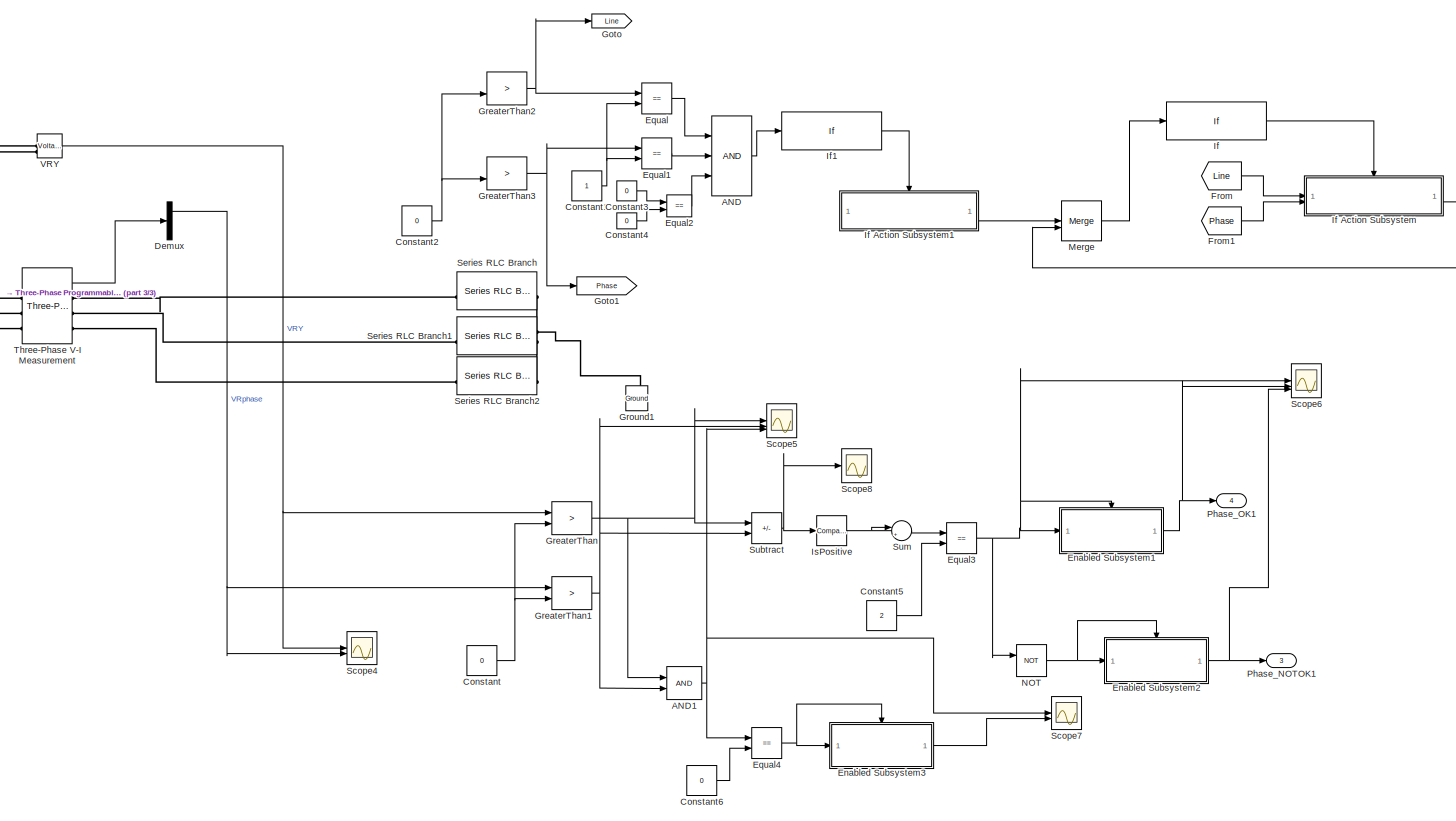
[diagram: root canvas - part 1/3, right side, full height]
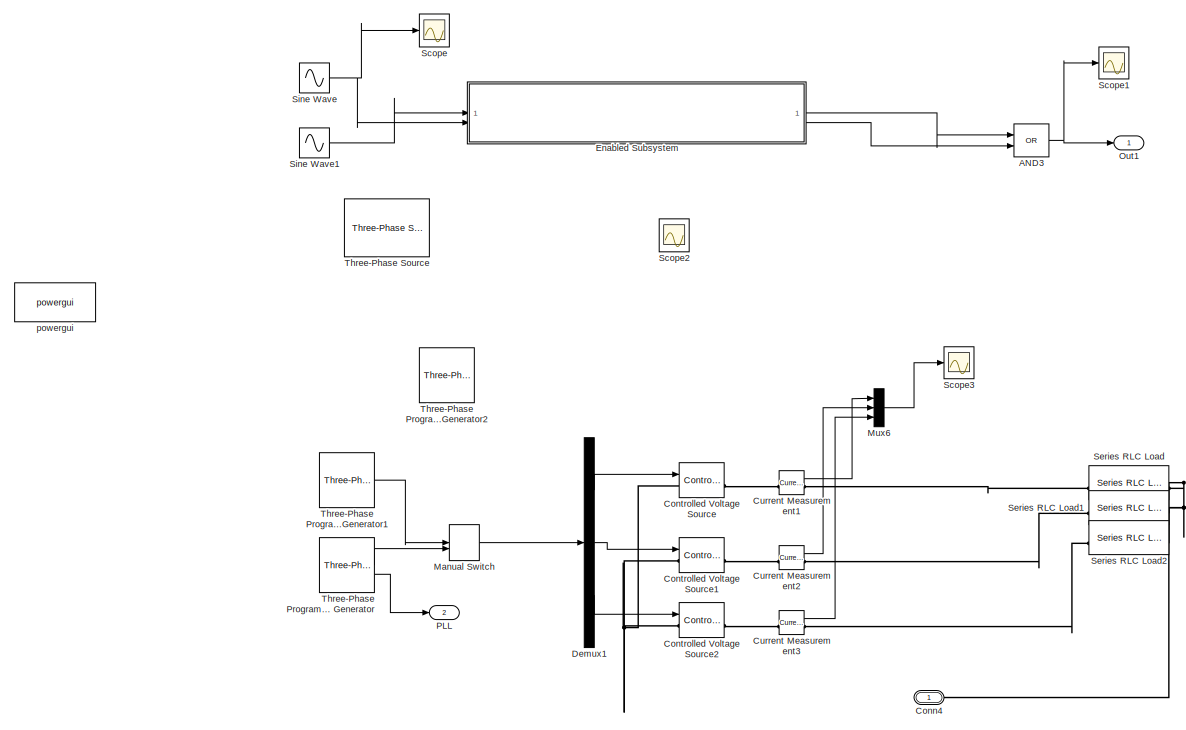
[diagram: root canvas - part 2/3, left side, full height]
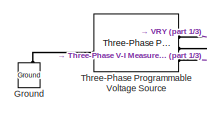
[diagram: root canvas - part 3/3, central region]
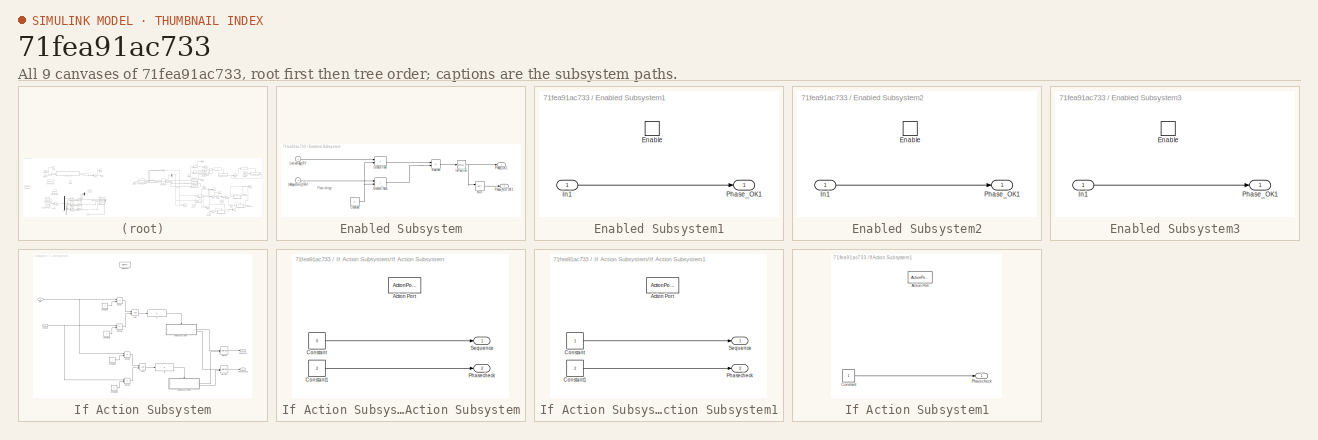
[diagram: thumbnail index - all 9 canvases of the model, root first then tree order]
MODEL slx_71fea91ac733
KIND model
CONFIG AbsTol = auto
CONFIG EnableMultiTasking = off
CONFIG FixedStep = auto
CONFIG MaxStep = auto
CONFIG MinStep = auto
CONFIG RelTol = 1e-3
CONFIG SampleTimeConstraint = Unconstrained
CONFIG SolverName = VariableStepAuto
CONFIG StartTime = 0.0
CONFIG StopTime = 10.0
BLOCK [Logic] AND
  AllPortsSameDT = off
  Inputs = 3
  OutDataTypeStr = boolean
BLOCK [Logic] AND1
  AllPortsSameDT = off
  OutDataTypeStr = boolean
BLOCK [Logic] AND3
  AllPortsSameDT = off
  Operator = OR
  OutDataTypeStr = boolean
BLOCK [PMIOPort] Conn4
  Side = Left
BLOCK [Constant] Constant
  Value = 0
BLOCK [Constant] Constant1
BLOCK [Constant] Constant2
  Value = 0
BLOCK [Constant] Constant3
  Value = 0
BLOCK [Constant] Constant4
  Value = 0
BLOCK [Constant] Constant5
  Value = 2
BLOCK [Constant] Constant6
  Value = 0
BLOCK [Reference] Controlled Voltage Source  REF=spsControlledVoltageSourceLib/Controlled Voltage Source
  LibrarySourceBlock = sps_lib/Sources/Controlled Voltage Source
  SourceBlock = spsControlledVoltageSourceLib/Controlled Voltage Source
  SourceType = Controlled Voltage Source
BLOCK [Reference] Controlled Voltage Source1  REF=spsControlledVoltageSourceLib/Controlled Voltage Source
  LibrarySourceBlock = sps_lib/Sources/Controlled Voltage Source
  SourceBlock = spsControlledVoltageSourceLib/Controlled Voltage Source
  SourceType = Controlled Voltage Source
BLOCK [Reference] Controlled Voltage Source2  REF=spsControlledVoltageSourceLib/Controlled Voltage Source
  LibrarySourceBlock = sps_lib/Sources/Controlled Voltage Source
  SourceBlock = spsControlledVoltageSourceLib/Controlled Voltage Source
  SourceType = Controlled Voltage Source
BLOCK [Reference] Current Measurement1  REF=spsCurrentMeasurementLib/Current Measurement
  LibrarySourceBlock = sps_lib/Sensors and Measurements/Current Measurement
  NameLocation = top
  SourceBlock = spsCurrentMeasurementLib/Current Measurement
  SourceType = Current Measurement
BLOCK [Reference] Current Measurement2  REF=spsCurrentMeasurementLib/Current Measurement
  LibrarySourceBlock = sps_lib/Sensors and Measurements/Current Measurement
  NameLocation = top
  SourceBlock = spsCurrentMeasurementLib/Current Measurement
  SourceType = Current Measurement
BLOCK [Reference] Current Measurement3  REF=spsCurrentMeasurementLib/Current Measurement
  LibrarySourceBlock = sps_lib/Sensors and Measurements/Current Measurement
  NameLocation = top
  SourceBlock = spsCurrentMeasurementLib/Current Measurement
  SourceType = Current Measurement
BLOCK [Demux] Demux
  Outputs = 3
BLOCK [Demux] Demux1
  Outputs = 3
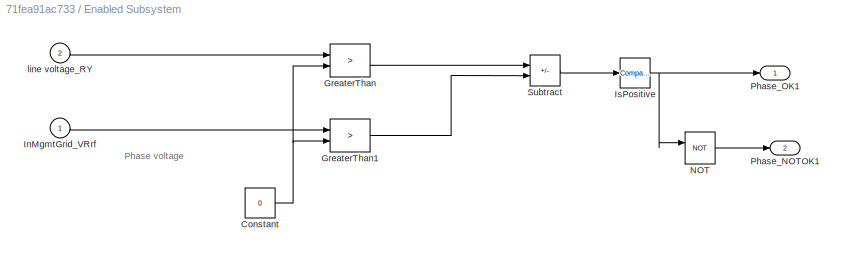
BLOCK [SubSystem] Enabled Subsystem
  TreatAsAtomicUnit = on
BLOCK [Constant] Enabled Subsystem/Constant
  Value = 0
BLOCK [RelationalOperator] Enabled Subsystem/GreaterThan
  InputSameDT = off
  Operator = >
  OutDataTypeStr = boolean
  RndMeth = Simplest
BLOCK [RelationalOperator] Enabled Subsystem/GreaterThan1
  InputSameDT = off
  Operator = >
  OutDataTypeStr = boolean
  RndMeth = Simplest
BLOCK [Inport] Enabled Subsystem/InMgmtGrid_VRrf
BLOCK [Reference] Enabled Subsystem/IsPositive  REF=simulink/Logic and Bit
Operations/Compare
To Zero
  LibrarySourceBlock = simulink/Quick Insert/Logic and Bit\nOperations/IsPositive
  SourceBlock = simulink/Logic and Bit\nOperations/Compare\nTo Zero
  SourceType = Compare To Zero
BLOCK [Logic] Enabled Subsystem/NOT
  AllPortsSameDT = off
  IconShape = distinctive
  Operator = NOT
  OutDataTypeStr = boolean
BLOCK [Outport] Enabled Subsystem/Phase_NOTOK1
  Port = 2
BLOCK [Outport] Enabled Subsystem/Phase_OK1
BLOCK [Sum] Enabled Subsystem/Subtract
  IconShape = rectangular
  Inputs = +-
BLOCK [Inport] Enabled Subsystem/line voltage_RY
  Port = 2
BLOCK [SubSystem] Enabled Subsystem1
  TreatAsAtomicUnit = on
BLOCK [EnablePort] Enabled Subsystem1/Enable
BLOCK [Inport] Enabled Subsystem1/In1
BLOCK [Outport] Enabled Subsystem1/Phase_OK1
BLOCK [SubSystem] Enabled Subsystem2
  TreatAsAtomicUnit = on
BLOCK [EnablePort] Enabled Subsystem2/Enable
BLOCK [Inport] Enabled Subsystem2/In1
BLOCK [Outport] Enabled Subsystem2/Phase_OK1
BLOCK [SubSystem] Enabled Subsystem3
  TreatAsAtomicUnit = on
BLOCK [EnablePort] Enabled Subsystem3/Enable
BLOCK [Inport] Enabled Subsystem3/In1
BLOCK [Outport] Enabled Subsystem3/Phase_OK1
BLOCK [RelationalOperator] Equal
  InputSameDT = off
  Operator = ==
  OutDataTypeStr = boolean
  RndMeth = Simplest
BLOCK [RelationalOperator] Equal1
  InputSameDT = off
  Operator = ==
  OutDataTypeStr = boolean
  RndMeth = Simplest
BLOCK [RelationalOperator] Equal2
  InputSameDT = off
  Operator = ==
  OutDataTypeStr = boolean
  RndMeth = Simplest
BLOCK [RelationalOperator] Equal3
  InputSameDT = off
  Operator = ==
  OutDataTypeStr = boolean
  RndMeth = Simplest
BLOCK [RelationalOperator] Equal4
  InputSameDT = off
  Operator = ==
  OutDataTypeStr = boolean
  RndMeth = Simplest
BLOCK [From] From
  GotoTag = Line
BLOCK [From] From1
  GotoTag = Phase
BLOCK [Goto] Goto
  GotoTag = Line
BLOCK [Goto] Goto1
  GotoTag = Phase
BLOCK [RelationalOperator] GreaterThan
  InputSameDT = off
  Operator = >
  OutDataTypeStr = boolean
  RndMeth = Simplest
BLOCK [RelationalOperator] GreaterThan1
  InputSameDT = off
  Operator = >
  OutDataTypeStr = boolean
  RndMeth = Simplest
BLOCK [RelationalOperator] GreaterThan2
  InputSameDT = off
  Operator = >
  OutDataTypeStr = boolean
  RndMeth = Simplest
BLOCK [RelationalOperator] GreaterThan3
  InputSameDT = off
  Operator = >
  OutDataTypeStr = boolean
  RndMeth = Simplest
BLOCK [Reference] Ground  REF=spsGroundLib/Ground
  LibrarySourceBlock = sps_lib/Utilities/Ground
  NameLocation = right
  SourceBlock = spsGroundLib/Ground
  SourceType = Ground
BLOCK [Reference] Ground1  REF=spsGroundLib/Ground
  LibrarySourceBlock = sps_lib/Utilities/Ground
  NameLocation = right
  SourceBlock = spsGroundLib/Ground
  SourceType = Ground
BLOCK [If] If
  Commented = on
  IfExpression = u1==1
  ShowElse = off
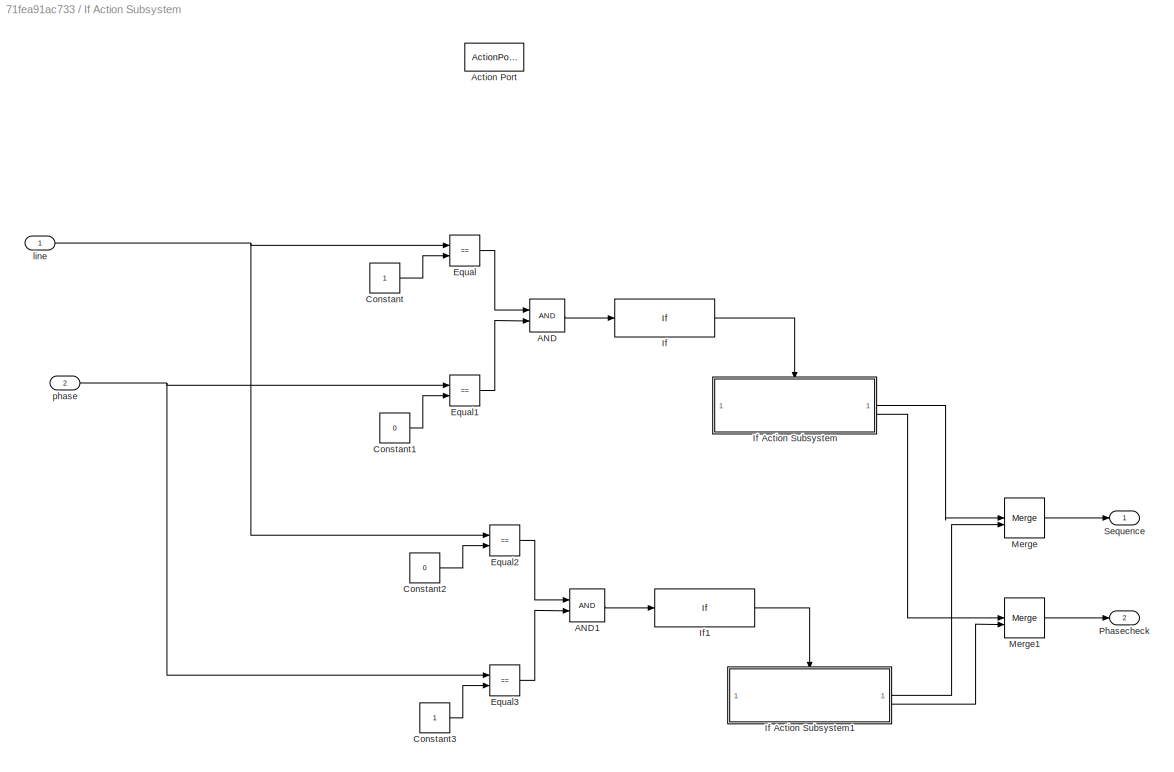
BLOCK [SubSystem] If Action Subsystem
  Commented = on
  TreatAsAtomicUnit = on
BLOCK [Logic] If Action Subsystem/AND
  AllPortsSameDT = off
  OutDataTypeStr = boolean
BLOCK [Logic] If Action Subsystem/AND1
  AllPortsSameDT = off
  OutDataTypeStr = boolean
BLOCK [ActionPort] If Action Subsystem/Action Port
  ActionPortLabel = if(u1==1)
BLOCK [Constant] If Action Subsystem/Constant
BLOCK [Constant] If Action Subsystem/Constant1
  Value = 0
BLOCK [Constant] If Action Subsystem/Constant2
  Value = 0
BLOCK [Constant] If Action Subsystem/Constant3
BLOCK [RelationalOperator] If Action Subsystem/Equal
  InputSameDT = off
  Operator = ==
  OutDataTypeStr = boolean
  RndMeth = Simplest
BLOCK [RelationalOperator] If Action Subsystem/Equal1
  InputSameDT = off
  Operator = ==
  OutDataTypeStr = boolean
  RndMeth = Simplest
BLOCK [RelationalOperator] If Action Subsystem/Equal2
  InputSameDT = off
  Operator = ==
  OutDataTypeStr = boolean
  RndMeth = Simplest
BLOCK [RelationalOperator] If Action Subsystem/Equal3
  InputSameDT = off
  Operator = ==
  OutDataTypeStr = boolean
  RndMeth = Simplest
BLOCK [If] If Action Subsystem/If
  ShowElse = off
BLOCK [SubSystem] If Action Subsystem/If Action Subsystem
  TreatAsAtomicUnit = on
BLOCK [ActionPort] If Action Subsystem/If Action Subsystem/Action Port
  ActionPortLabel = if(u1 > 0)
BLOCK [Constant] If Action Subsystem/If Action Subsystem/Constant
  Value = 0
BLOCK [Constant] If Action Subsystem/If Action Subsystem/Constant1
  Value = 2
BLOCK [Outport] If Action Subsystem/If Action Subsystem/Phasecheck
  Port = 2
BLOCK [Outport] If Action Subsystem/If Action Subsystem/Sequence
BLOCK [SubSystem] If Action Subsystem/If Action Subsystem1
  TreatAsAtomicUnit = on
BLOCK [ActionPort] If Action Subsystem/If Action Subsystem1/Action Port
  ActionPortLabel = if(u1 > 0)
BLOCK [Constant] If Action Subsystem/If Action Subsystem1/Constant
BLOCK [Constant] If Action Subsystem/If Action Subsystem1/Constant1
  Value = 2
BLOCK [Outport] If Action Subsystem/If Action Subsystem1/Phasecheck
  Port = 2
BLOCK [Outport] If Action Subsystem/If Action Subsystem1/Sequence
BLOCK [If] If Action Subsystem/If1
  ShowElse = off
BLOCK [Merge] If Action Subsystem/Merge
BLOCK [Merge] If Action Subsystem/Merge1
BLOCK [Outport] If Action Subsystem/Phasecheck
  Port = 2
BLOCK [Outport] If Action Subsystem/Sequence
BLOCK [Inport] If Action Subsystem/line
BLOCK [Inport] If Action Subsystem/phase
  Port = 2
BLOCK [SubSystem] If Action Subsystem1
  Commented = on
  TreatAsAtomicUnit = on
BLOCK [ActionPort] If Action Subsystem1/Action Port
  ActionPortLabel = if(u1 > 0)
BLOCK [Constant] If Action Subsystem1/Constant
BLOCK [Outport] If Action Subsystem1/Phasecheck
BLOCK [If] If1
  Commented = on
  ShowElse = off
BLOCK [Reference] IsPositive  REF=simulink/Logic and Bit
Operations/Compare
To Zero
  LibrarySourceBlock = simulink/Quick Insert/Logic and Bit\nOperations/IsPositive
  SourceBlock = simulink/Logic and Bit\nOperations/Compare\nTo Zero
  SourceType = Compare To Zero
BLOCK [ManualSwitch] Manual Switch
  CurrentSetting = 0
BLOCK [Merge] Merge
BLOCK [Mux] Mux6
  DisplayOption = bar
  Inputs = 3
BLOCK [Logic] NOT
  AllPortsSameDT = off
  IconShape = distinctive
  Operator = NOT
  OutDataTypeStr = boolean
BLOCK [Outport] Out1
BLOCK [Outport] PLL
  Port = 2
  VectorParamsAs1DForOutWhenUnconnected = off
BLOCK [Outport] Phase_NOTOK1
  Port = 3
BLOCK [Outport] Phase_OK1
  Port = 4
BLOCK [Scope] Scope
  Floating = off
  NumInputPorts = 2
  ScopeSpecificationString = Simulink.scopes.TimeScopeBlockCfg('CurrentConfiguration', extmgr.ConfigurationSet(extmgr.Configuration('Core','General UI',true),extmgr.Configuration('Core','Source UI',true),extmgr.Configuration('Sources','WiredSimulink',true,'DataLoggingVariableName','ScopeData1'),extmgr.Configuration('Visuals','Time Domain',true,'SerializedDisplays',{struct('MinYLimReal','-10.00000','MaxYLimReal','10.00000','YL...<+1365ch>
BLOCK [Scope] Scope1
  Floating = off
  NumInputPorts = 1
  ScopeSpecificationString = Simulink.scopes.TimeScopeBlockCfg('CurrentConfiguration', extmgr.ConfigurationSet(extmgr.Configuration('Core','General UI',true),extmgr.Configuration('Core','Source UI',true),extmgr.Configuration('Sources','WiredSimulink',true),extmgr.Configuration('Visuals','Time Domain',true),extmgr.Configuration('Tools','Plot Navigation',true),extmgr.Configuration('Tools','Measurements',true)),'Version','2022b'...<+1ch>
BLOCK [Scope] Scope2
  Floating = off
  NumInputPorts = 2
  ScopeSpecificationString = Simulink.scopes.TimeScopeBlockCfg('CurrentConfiguration', extmgr.ConfigurationSet(extmgr.Configuration('Core','General UI',true),extmgr.Configuration('Core','Source UI',true),extmgr.Configuration('Sources','WiredSimulink',true,'DataLoggingVariableName','ScopeData2'),extmgr.Configuration('Visuals','Time Domain',true,'SerializedDisplays',{struct('MinYLimReal','-10.00000','MaxYLimReal','10.00000','YL...<+1365ch>
BLOCK [Scope] Scope3
  Floating = off
  NumInputPorts = 1
  ScopeSpecificationString = Simulink.scopes.TimeScopeBlockCfg('CurrentConfiguration', extmgr.ConfigurationSet(extmgr.Configuration('Core','General UI',true),extmgr.Configuration('Core','Source UI',true),extmgr.Configuration('Sources','WiredSimulink',true,'DataLoggingVariableName','ScopeData3'),extmgr.Configuration('Visuals','Time Domain',true,'SerializedDisplays',{struct('MinYLimReal','-74.25836','MaxYLimReal','74.01757','YL...<+1502ch>
BLOCK [Scope] Scope4
  Floating = off
  NumInputPorts = 2
  ScopeSpecificationString = Simulink.scopes.TimeScopeBlockCfg('CurrentConfiguration', extmgr.ConfigurationSet(extmgr.Configuration('Core','General UI',true),extmgr.Configuration('Core','Source UI',true),extmgr.Configuration('Sources','WiredSimulink',true,'DataLoggingVariableName','ScopeData4'),extmgr.Configuration('Visuals','Time Domain',true,'SerializedDisplays',{struct('MinYLimReal','-707.10678','MaxYLimReal','707.10678','...<+1515ch>
BLOCK [Scope] Scope5
  Floating = off
  NumInputPorts = 3
  ScopeSpecificationString = Simulink.scopes.TimeScopeBlockCfg('CurrentConfiguration', extmgr.ConfigurationSet(extmgr.Configuration('Core','General UI',true),extmgr.Configuration('Core','Source UI',true),extmgr.Configuration('Sources','WiredSimulink',true,'DataLoggingVariableName','ScopeData5'),extmgr.Configuration('Visuals','Time Domain',true,'SerializedDisplays',{struct('MinYLimReal','-0.125','MaxYLimReal','1.125','YLabelRe...<+2929ch>
BLOCK [Scope] Scope6
  Floating = off
  NumInputPorts = 3
  ScopeSpecificationString = Simulink.scopes.TimeScopeBlockCfg('CurrentConfiguration', extmgr.ConfigurationSet(extmgr.Configuration('Core','General UI',true),extmgr.Configuration('Core','Source UI',true),extmgr.Configuration('Sources','WiredSimulink',true,'DataLoggingVariableName','ScopeData1'),extmgr.Configuration('Visuals','Time Domain',true,'SerializedDisplays',{struct('MinYLimReal','-0.125','MaxYLimReal','1.125','YLabelRe...<+2964ch>
BLOCK [Scope] Scope7
  Floating = off
  NumInputPorts = 2
  ScopeSpecificationString = Simulink.scopes.TimeScopeBlockCfg('CurrentConfiguration', extmgr.ConfigurationSet(extmgr.Configuration('Core','General UI',true),extmgr.Configuration('Core','Source UI',true),extmgr.Configuration('Sources','WiredSimulink',true,'DataLoggingVariableName','ScopeData2'),extmgr.Configuration('Visuals','Time Domain',true,'SerializedDisplays',{struct('MinYLimReal','-0.125','MaxYLimReal','1.125','YLabelRe...<+2297ch>
BLOCK [Scope] Scope8
  Floating = off
  NumInputPorts = 3
  ScopeSpecificationString = Simulink.scopes.TimeScopeBlockCfg('CurrentConfiguration', extmgr.ConfigurationSet(extmgr.Configuration('Core','General UI',true),extmgr.Configuration('Core','Source UI',true),extmgr.Configuration('Sources','WiredSimulink',true,'DataLoggingVariableName','ScopeData3'),extmgr.Configuration('Visuals','Time Domain',true,'SerializedDisplays',{struct('MinYLimReal','-0.22257','MaxYLimReal','1.71538','YLab...<+2942ch>
BLOCK [Reference] Series RLC Branch  REF=spsSeriesRLCBranchLib/Series RLC Branch
  LibrarySourceBlock = sps_lib/Passives/Series RLC Branch
  SourceBlock = spsSeriesRLCBranchLib/Series RLC Branch
  SourceType = Series RLC Branch
BLOCK [Reference] Series RLC Branch1  REF=spsSeriesRLCBranchLib/Series RLC Branch
  LibrarySourceBlock = sps_lib/Passives/Series RLC Branch
  SourceBlock = spsSeriesRLCBranchLib/Series RLC Branch
  SourceType = Series RLC Branch
BLOCK [Reference] Series RLC Branch2  REF=spsSeriesRLCBranchLib/Series RLC Branch
  LibrarySourceBlock = sps_lib/Passives/Series RLC Branch
  SourceBlock = spsSeriesRLCBranchLib/Series RLC Branch
  SourceType = Series RLC Branch
BLOCK [Reference] Series RLC Load  REF=spsSeriesRLCLoadLib/Series RLC Load
  AttributesFormatString = \n
  LibrarySourceBlock = sps_lib/Passives/Series RLC Load
  SourceBlock = spsSeriesRLCLoadLib/Series RLC Load
  SourceType = Series RLC Load
BLOCK [Reference] Series RLC Load1  REF=spsSeriesRLCLoadLib/Series RLC Load
  AttributesFormatString = \n
  LibrarySourceBlock = sps_lib/Passives/Series RLC Load
  SourceBlock = spsSeriesRLCLoadLib/Series RLC Load
  SourceType = Series RLC Load
BLOCK [Reference] Series RLC Load2  REF=spsSeriesRLCLoadLib/Series RLC Load
  AttributesFormatString = \n
  LibrarySourceBlock = sps_lib/Passives/Series RLC Load
  SourceBlock = spsSeriesRLCLoadLib/Series RLC Load
  SourceType = Series RLC Load
BLOCK [Sin] Sine Wave
  Amplitude = 10
  Frequency = 314
BLOCK [Sin] Sine Wave1
  Amplitude = 10
  Frequency = 314
  Phase = 30*pi/180
BLOCK [Sum] Subtract
  IconShape = rectangular
  Inputs = +-
BLOCK [Sum] Sum
  Inputs = |++
BLOCK [Reference] Three-Phase Programmable Generator  REF=spsThreePhaseProgrammableGeneratorLib/Three-Phase
Programmable
Generator
  LibrarySourceBlock = sps_lib/Sources/Signal Generator Sources/Three-Phase\nProgrammable\nGenerator
  SourceBlock = spsThreePhaseProgrammableGeneratorLib/Three-Phase\nProgrammable\nGenerator
  SourceType = Three-Phase Programmable Generator
BLOCK [Reference] Three-Phase Programmable Generator1  REF=spsThreePhaseProgrammableGeneratorLib/Three-Phase
Programmable
Generator
  LibrarySourceBlock = sps_lib/Sources/Signal Generator Sources/Three-Phase\nProgrammable\nGenerator
  SourceBlock = spsThreePhaseProgrammableGeneratorLib/Three-Phase\nProgrammable\nGenerator
  SourceType = Three-Phase Programmable Generator
BLOCK [Reference] Three-Phase Programmable Generator2  REF=spsThreePhaseProgrammableGeneratorLib/Three-Phase
Programmable
Generator
  LibrarySourceBlock = sps_lib/Sources/Signal Generator Sources/Three-Phase\nProgrammable\nGenerator
  SourceBlock = spsThreePhaseProgrammableGeneratorLib/Three-Phase\nProgrammable\nGenerator
  SourceType = Three-Phase Programmable Generator
BLOCK [Reference] Three-Phase Programmable Voltage Source  REF=spsThreePhaseProgrammableVoltageSourceLib/Three-Phase
Programmable
Voltage Source
  LibrarySourceBlock = sps_lib/Sources/Three-Phase\nProgrammable\nVoltage Source
  SourceBlock = spsThreePhaseProgrammableVoltageSourceLib/Three-Phase\nProgrammable\nVoltage Source
  SourceType = Three-Phase Programmable Voltage Source
BLOCK [Reference] Three-Phase Source  REF=spsThreePhaseSourceLib/Three-Phase Source
  LibrarySourceBlock = sps_lib/Sources/Three-Phase Source
  SourceBlock = spsThreePhaseSourceLib/Three-Phase Source
  SourceType = Three-Phase Source
BLOCK [Reference] Three-Phase V-I Measurement  REF=spsThreePhaseVIMeasurementLib/Three-Phase
V-I Measurement
  LibrarySourceBlock = sps_lib/Sensors and Measurements/Three-Phase\nV-I Measurement
  SourceBlock = spsThreePhaseVIMeasurementLib/Three-Phase\nV-I Measurement
  SourceType = Three-Phase VI Measurement
BLOCK [Reference] VRY  REF=spsVoltageMeasurementLib/Voltage Measurement
  LibrarySourceBlock = sps_lib/Sensors and Measurements/Voltage Measurement
  SourceBlock = spsVoltageMeasurementLib/Voltage Measurement
  SourceType = Voltage Measurement
  UserDataPersistent = on
BLOCK [Reference] powergui  REF=sps_lib/powergui
  Priority = 1
  SourceBlock = sps_lib/powergui
  SourceType = PSB option menu block
ANNOTATION Enabled Subsystem: Phase voltage
NET AND1:1 -> Equal4:1, Scope5:3, Scope7:1
NET AND3:1 -> Out1:1, Scope1:1
LINE AND:1 -> If1:1
NET Constant1:1 -> Equal1:2, Equal:2
NET Constant2:1 -> GreaterThan2:2, GreaterThan3:2
LINE Constant3:1 -> Equal2:1
LINE Constant4:1 -> Equal2:2
LINE Constant5:1 -> Equal3:2
LINE Constant6:1 -> Equal4:2
NET Constant:1 -> GreaterThan1:2, GreaterThan:2
LINE Current Measurement1:1 -> Mux6:1
LINE Current Measurement2:1 -> Mux6:2
LINE Current Measurement3:1 -> Mux6:3
LINE Demux1:1 -> Controlled Voltage Source:1
LINE Demux1:2 -> Controlled Voltage Source1:1
LINE Demux1:3 -> Controlled Voltage Source2:1
NET Demux:1 -> GreaterThan1:1, Scope4:2
NET Enabled Subsystem/Constant:1 -> Enabled Subsystem/GreaterThan1:2, Enabled Subsystem/GreaterThan:2
LINE Enabled Subsystem/GreaterThan1:1 -> Enabled Subsystem/Subtract:2
LINE Enabled Subsystem/GreaterThan:1 -> Enabled Subsystem/Subtract:1
LINE Enabled Subsystem/InMgmtGrid_VRrf:1 -> Enabled Subsystem/GreaterThan1:1
NET Enabled Subsystem/IsPositive:1 -> Enabled Subsystem/NOT:1, Enabled Subsystem/Phase_OK1:1
LINE Enabled Subsystem/NOT:1 -> Enabled Subsystem/Phase_NOTOK1:1
LINE Enabled Subsystem/Subtract:1 -> Enabled Subsystem/IsPositive:1
LINE Enabled Subsystem/line voltage_RY:1 -> Enabled Subsystem/GreaterThan:1
LINE Enabled Subsystem1/In1:1 -> Enabled Subsystem1/Phase_OK1:1
NET Enabled Subsystem1:1 -> Phase_OK1:1, Scope6:2
LINE Enabled Subsystem2/In1:1 -> Enabled Subsystem2/Phase_OK1:1
NET Enabled Subsystem2:1 -> Phase_NOTOK1:1, Scope6:3
LINE Enabled Subsystem3/In1:1 -> Enabled Subsystem3/Phase_OK1:1
LINE Enabled Subsystem3:1 -> Scope7:2
LINE Enabled Subsystem:1 -> AND3:1
LINE Enabled Subsystem:2 -> AND3:2
LINE Equal1:1 -> AND:2
LINE Equal2:1 -> AND:3
NET Equal3:1 -> Enabled Subsystem1:1, Enabled Subsystem1:enable, NOT:1, Scope6:1
NET Equal4:1 -> Enabled Subsystem3:1, Enabled Subsystem3:enable
LINE Equal:1 -> AND:1
LINE From1:1 -> If Action Subsystem:2
LINE From:1 -> If Action Subsystem:1
NET GreaterThan1:1 -> AND1:2, Scope5:2, Subtract:2
NET GreaterThan2:1 -> Equal:1, Goto:1
NET GreaterThan3:1 -> Equal1:1, Goto1:1
NET GreaterThan:1 -> AND1:1, Scope5:1, Subtract:1
LINE If Action Subsystem/AND1:1 -> If Action Subsystem/If1:1
LINE If Action Subsystem/AND:1 -> If Action Subsystem/If:1
LINE If Action Subsystem/Constant1:1 -> If Action Subsystem/Equal1:2
LINE If Action Subsystem/Constant2:1 -> If Action Subsystem/Equal2:2
LINE If Action Subsystem/Constant3:1 -> If Action Subsystem/Equal3:2
LINE If Action Subsystem/Constant:1 -> If Action Subsystem/Equal:2
LINE If Action Subsystem/Equal1:1 -> If Action Subsystem/AND:2
LINE If Action Subsystem/Equal2:1 -> If Action Subsystem/AND1:1
LINE If Action Subsystem/Equal3:1 -> If Action Subsystem/AND1:2
LINE If Action Subsystem/Equal:1 -> If Action Subsystem/AND:1
LINE If Action Subsystem/If Action Subsystem/Constant1:1 -> If Action Subsystem/If Action Subsystem/Phasecheck:1
LINE If Action Subsystem/If Action Subsystem/Constant:1 -> If Action Subsystem/If Action Subsystem/Sequence:1
LINE If Action Subsystem/If Action Subsystem1/Constant1:1 -> If Action Subsystem/If Action Subsystem1/Phasecheck:1
LINE If Action Subsystem/If Action Subsystem1/Constant:1 -> If Action Subsystem/If Action Subsystem1/Sequence:1
LINE If Action Subsystem/If Action Subsystem1:1 -> If Action Subsystem/Merge:2
LINE If Action Subsystem/If Action Subsystem1:2 -> If Action Subsystem/Merge1:2
LINE If Action Subsystem/If Action Subsystem:1 -> If Action Subsystem/Merge:1
LINE If Action Subsystem/If Action Subsystem:2 -> If Action Subsystem/Merge1:1
LINE If Action Subsystem/If1:1 -> If Action Subsystem/If Action Subsystem1:ifaction
LINE If Action Subsystem/If:1 -> If Action Subsystem/If Action Subsystem:ifaction
LINE If Action Subsystem/Merge1:1 -> If Action Subsystem/Phasecheck:1
LINE If Action Subsystem/Merge:1 -> If Action Subsystem/Sequence:1
NET If Action Subsystem/line:1 -> If Action Subsystem/Equal2:1, If Action Subsystem/Equal:1
NET If Action Subsystem/phase:1 -> If Action Subsystem/Equal1:1, If Action Subsystem/Equal3:1
LINE If Action Subsystem1/Constant:1 -> If Action Subsystem1/Phasecheck:1
LINE If Action Subsystem1:1 -> Merge:1
LINE If Action Subsystem:2 -> Merge:2
LINE If1:1 -> If Action Subsystem1:ifaction
LINE If:1 -> If Action Subsystem:ifaction
NET IsPositive:1 -> Sum:1, Sum:2
LINE Manual Switch:1 -> Demux1:1
LINE Merge:1 -> If:1
LINE Mux6:1 -> Scope3:1
NET NOT:1 -> Enabled Subsystem2:1, Enabled Subsystem2:enable
LINE Sine Wave1:1 -> Enabled Subsystem:1
NET Sine Wave:1 -> Enabled Subsystem:2, Scope:1
NET Subtract:1 -> IsPositive:1, Scope8:1
LINE Sum:1 -> Equal3:1
LINE Three-Phase Programmable Generator1:1 -> Manual Switch:1
LINE Three-Phase Programmable Generator:1 -> Manual Switch:2
LINE Three-Phase Programmable Generator:2 -> PLL:1
LINE Three-Phase V-I Measurement:1 -> Demux:1
NET VRY:1 -> GreaterThan:1, Scope4:1
PNET net1: Conn4:RConn1 -- Series RLC Load1:RConn1 -- Series RLC Load2:RConn1 -- Series RLC Load:RConn1
PNET net2: Controlled Voltage Source1:LConn1 -- Controlled Voltage Source2:LConn1 -- Controlled Voltage Source:LConn1
PLINE Controlled Voltage Source1:RConn1 -- Current Measurement2:LConn1
PLINE Controlled Voltage Source2:RConn1 -- Current Measurement3:LConn1
PLINE Controlled Voltage Source:RConn1 -- Current Measurement1:LConn1
PLINE Current Measurement1:RConn1 -- Series RLC Load:LConn1
PLINE Current Measurement2:RConn1 -- Series RLC Load1:LConn1
PLINE Current Measurement3:RConn1 -- Series RLC Load2:LConn1
PNET net3: Ground1:LConn1 -- Series RLC Branch1:RConn1 -- Series RLC Branch2:RConn1 -- Series RLC Branch:RConn1
PLINE Ground:LConn1 -- Three-Phase Programmable Voltage Source:LConn1
PLINE Series RLC Branch1:LConn1 -- Three-Phase V-I Measurement:RConn2
PLINE Series RLC Branch2:LConn1 -- Three-Phase V-I Measurement:RConn3
PLINE Series RLC Branch:LConn1 -- Three-Phase V-I Measurement:RConn1
PNET net4: Three-Phase Programmable Voltage Source:RConn1 -- Three-Phase V-I Measurement:LConn1 -- VRY:LConn1
PNET net5: Three-Phase Programmable Voltage Source:RConn2 -- Three-Phase V-I Measurement:LConn2 -- VRY:LConn2
PLINE Three-Phase Programmable Voltage Source:RConn3 -- Three-Phase V-I Measurement:LConn3
note: NET lines group one-source signal fan-out (src -> all destinations, sorted); 1:1 wires keep LINE; PNET lines group multi-terminal physical nets as a canonical sorted terminal list (undirected conserving connections); 2-terminal nets keep the pairwise PLINE form
